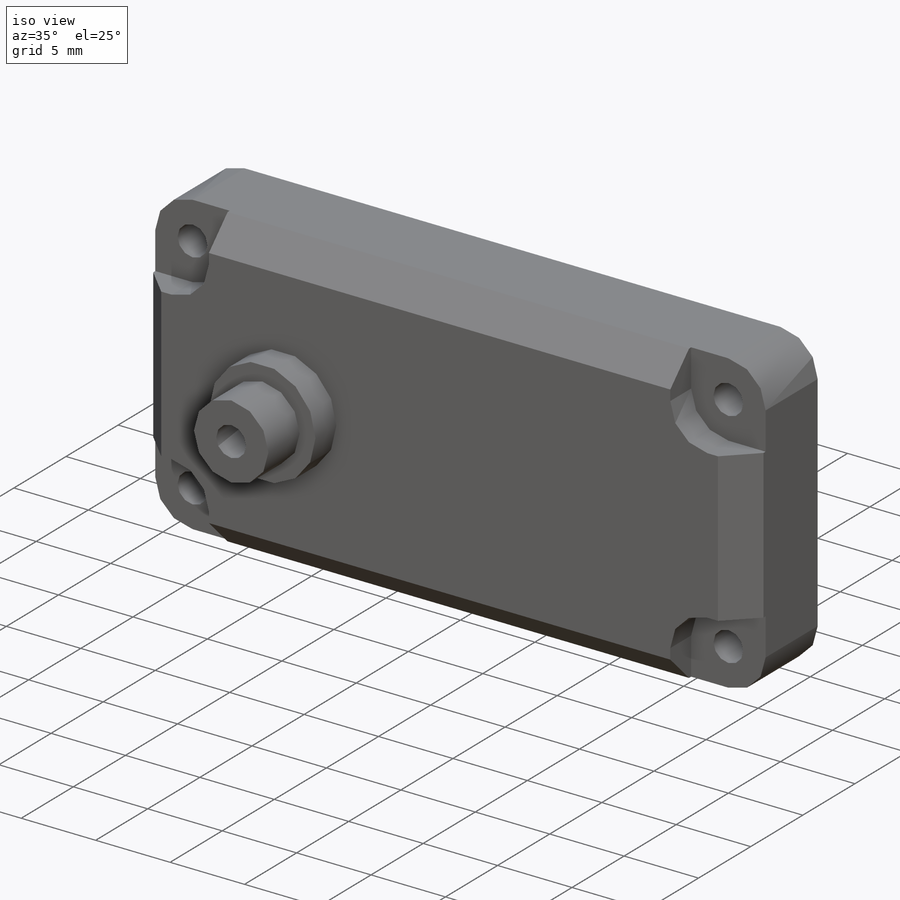
[diagram: iso view]
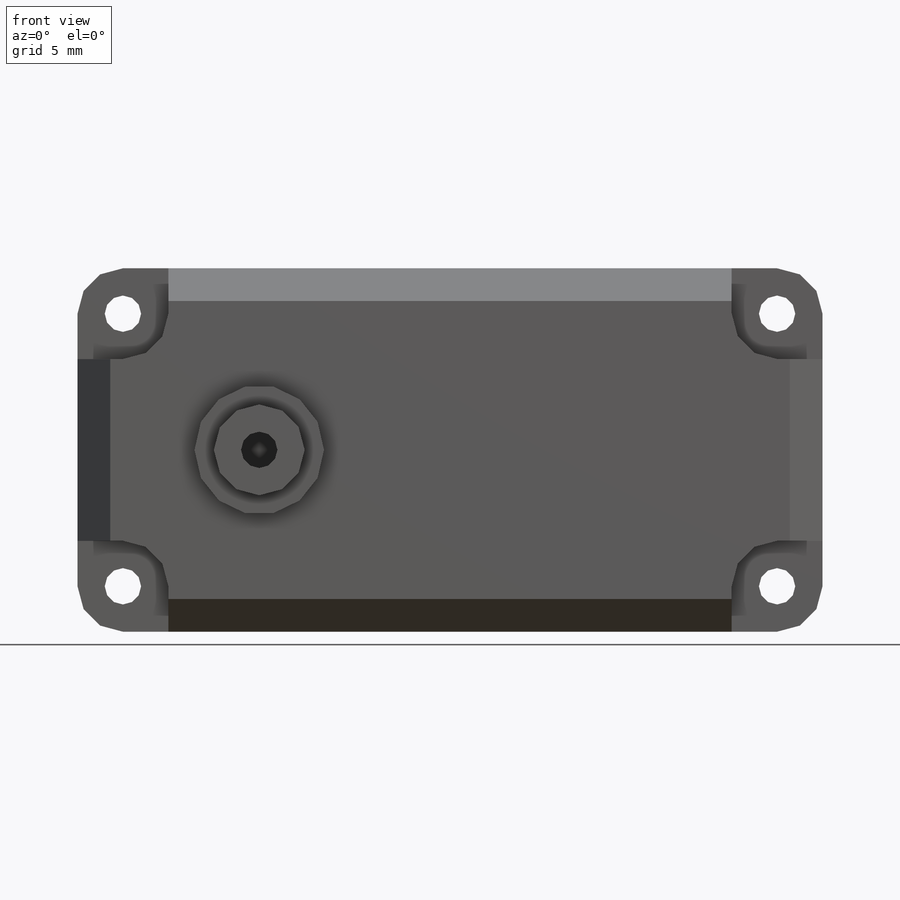
[diagram: front view]
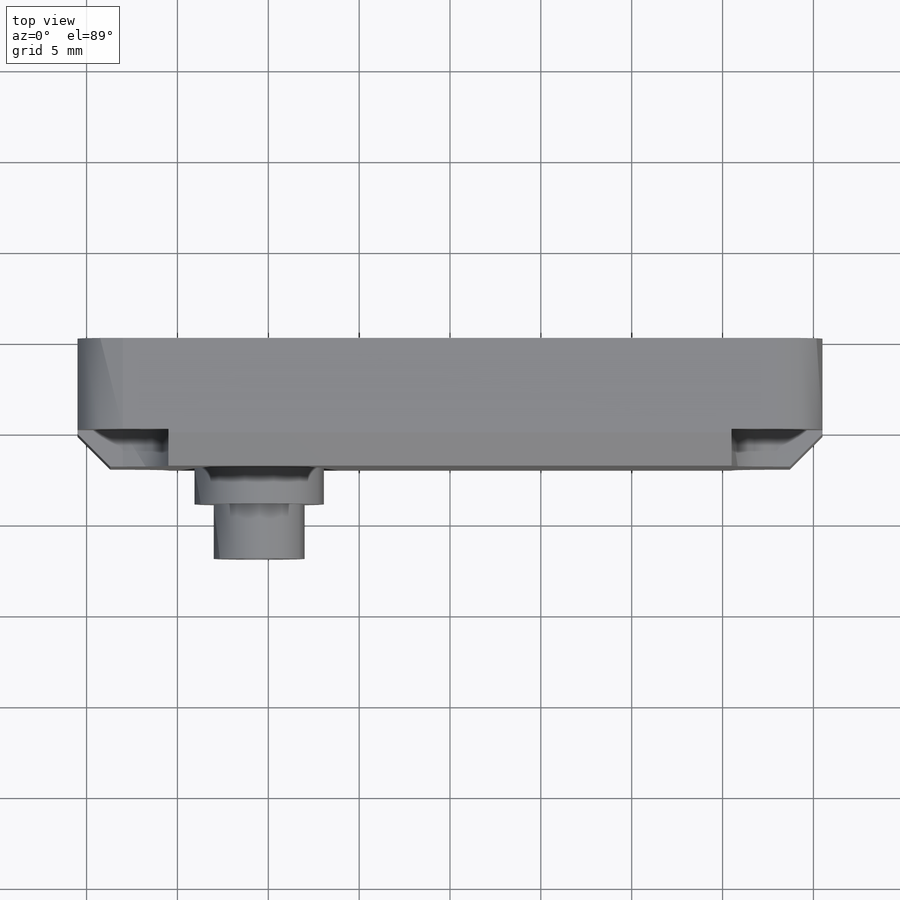
[diagram: top view]
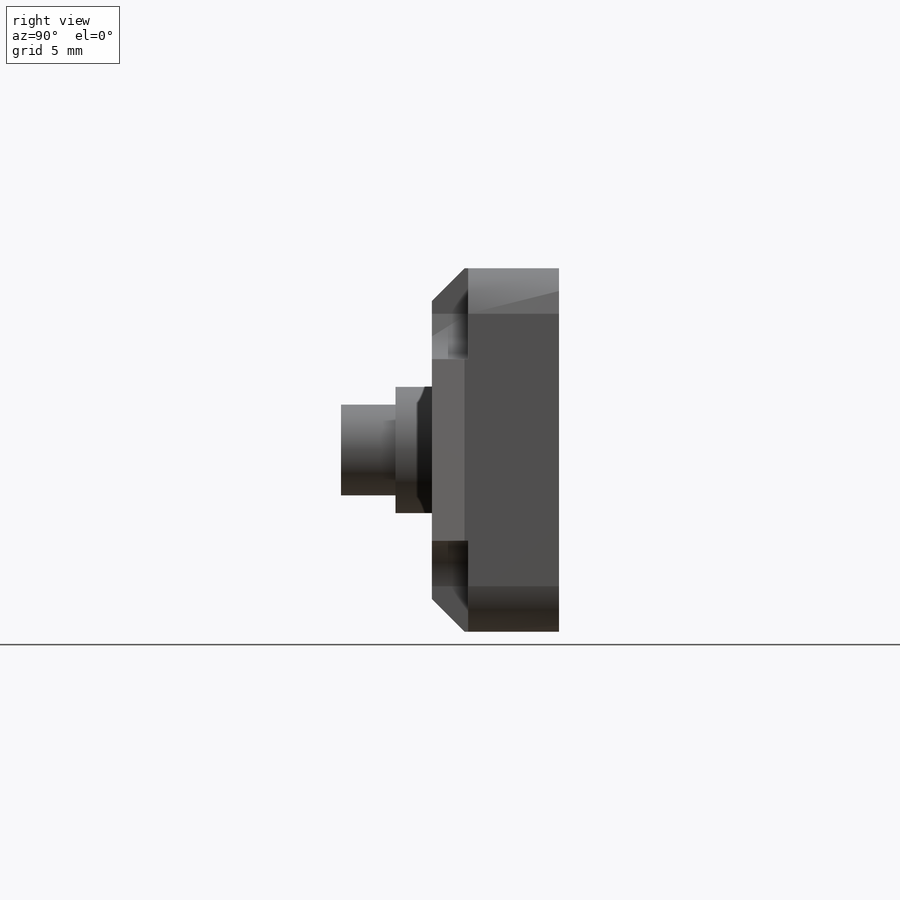
[diagram: right view]
SOLIDWORKS PART (.sldprt)
format: sldprt  version: not decoded by parser v0  size: 407,552 bytes
history: native  units: mm
features: sketch x8, extrude x4, cut_extrude x4, plane x3, material x1, chamfer x1, shell x1, fillet x1 (+10 scaffold rows collapsed)
feature tree (33):
  scaffold x10  (default folders/planes/origin — collapsed)
  material  "Material <sin especificar>"
  plane  "Alzado"
  plane  "Planta"
  plane  "Vista lateral"
  sketch  "Croquis1"  dims[D1=2.5mm D2=10.0mm D3=10.0mm D4=20.5mm D5=20.5mm]
  extrude  "Base"  Depth=7mm
  sketch  "Croquis3"  dims[D3=~0.858206mm D1=18.0mm D2=7.5mm]
  cut_extrude  "Taladros tornillos"  [1 undecoded]
  chamfer  "Chaflán superior"  Distance=1.8mm Angle=45deg
  sketch  "Croquis4"
  cut_extrude  "Huecos tornillos"  Depth=2mm
  shell  "Vaciado interno tapa"  Thickness=1.7mm
  sketch  "Croquis5"  dims[D1=6.0mm]
  cut_extrude  "Caja cable servo"  [1 undecoded]
  sketch  "Croquis6"  dims[D2=~1.258961mm D1=31.0mm]
  extrude  "Base soporte"  Depth=2mm
  extrude  "Soporte cilindrico"  [1 undecoded]
  sketch  "Croquis6<3>"  dims[D1=5.0mm]
  sketch  "Croquis7"
  extrude  "Refuerzo interior impresion"  [1 undecoded]
  sketch  "Croquis8"
  cut_extrude  "Rebaje esquinas interiores"  Depth=0.5mm
  fillet  "Rebaje esquinas interiores redondeo"  Radius=0.5mm
decode coverage: 12 of 19 modeling features carry decoded parameters
note: ~ marks probable driven/reference dimensions
note: 4 parameter values undecoded
summary: no parameter record found for 4 features
note: suppression state not decoded; provenance and decode notes live in map.json
